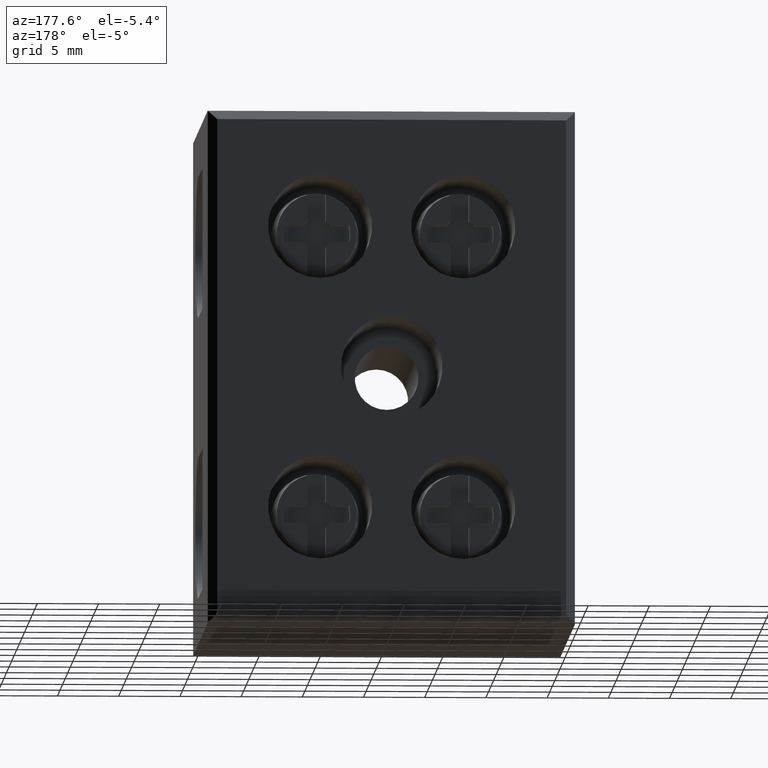
[diagram: clean part render]
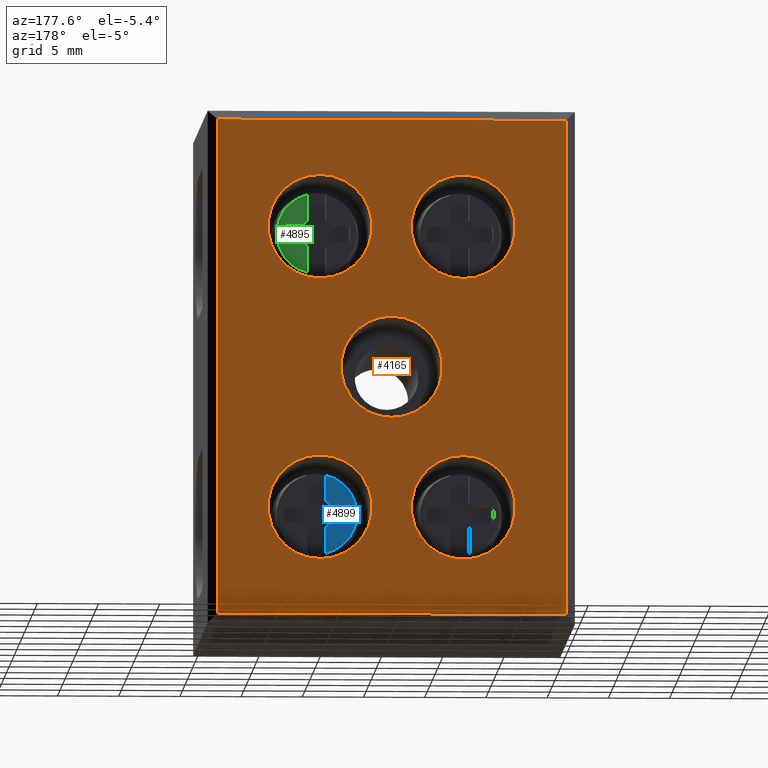
[diagram: same view with three faces highlighted in distinct colors, each labeled with its STEP entity id]
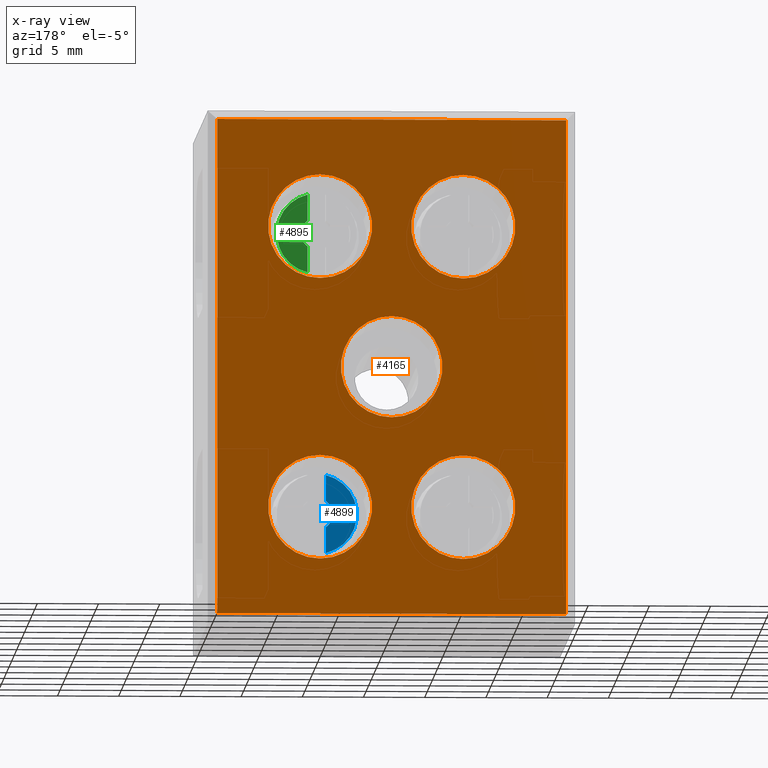
[diagram: x-ray of the same camera — body ghosted, the three highlighted faces saturated]
A machine part, auxiliary view with three faces highlighted in distinct colors.
The next image is the same camera in x-ray (body ghosted, the three faces saturated) — at least one of them is partly hidden behind the body in this view.
Their STEP definitions:

[orange] entity #4165 — the highlighted planar face has unit normal (0, -1, 0).
#145 = EDGE_LOOP ( 'NONE', ( #568, #567 ) ) ;
#162 = EDGE_LOOP ( 'NONE', ( #584, #547 ) ) ;
#168 = EDGE_LOOP ( 'NONE', ( #489, #498 ) ) ;
#196 = EDGE_LOOP ( 'NONE', ( #586, #576 ) ) ;
#237 = EDGE_LOOP ( 'NONE', ( #559, #509, #579, #540 ) ) ;
#241 = EDGE_LOOP ( 'NONE', ( #539, #544 ) ) ;
#489 = ORIENTED_EDGE ( 'NONE', *, *, #4594, .F. ) ;
#498 = ORIENTED_EDGE ( 'NONE', *, *, #4290, .F. ) ;
#509 = ORIENTED_EDGE ( 'NONE', *, *, #4593, .T. ) ;
#539 = ORIENTED_EDGE ( 'NONE', *, *, #4613, .F. ) ;
#540 = ORIENTED_EDGE ( 'NONE', *, *, #4612, .T. ) ;
#544 = ORIENTED_EDGE ( 'NONE', *, *, #4296, .F. ) ;
#547 = ORIENTED_EDGE ( 'NONE', *, *, #4578, .T. ) ;
#559 = ORIENTED_EDGE ( 'NONE', *, *, #4592, .T. ) ;
#567 = ORIENTED_EDGE ( 'NONE', *, *, #4289, .F. ) ;
#568 = ORIENTED_EDGE ( 'NONE', *, *, #4604, .F. ) ;
#576 = ORIENTED_EDGE ( 'NONE', *, *, #4205, .F. ) ;
#579 = ORIENTED_EDGE ( 'NONE', *, *, #4567, .T. ) ;
#584 = ORIENTED_EDGE ( 'NONE', *, *, #4273, .T. ) ;
#586 = ORIENTED_EDGE ( 'NONE', *, *, #4569, .F. ) ;
#1456 = VERTEX_POINT ( 'NONE', #1818 ) ;
#1458 = VERTEX_POINT ( 'NONE', #1870 ) ;
#1460 = VERTEX_POINT ( 'NONE', #1866 ) ;
#1467 = VERTEX_POINT ( 'NONE', #1813 ) ;
#1483 = VERTEX_POINT ( 'NONE', #1852 ) ;
#1499 = VERTEX_POINT ( 'NONE', #1849 ) ;
#1516 = VERTEX_POINT ( 'NONE', #1919 ) ;
#1536 = VERTEX_POINT ( 'NONE', #1909 ) ;
#1542 = VERTEX_POINT ( 'NONE', #1903 ) ;
#1549 = VERTEX_POINT ( 'NONE', #1932 ) ;
#1685 = VERTEX_POINT ( 'NONE', #2005 ) ;
#1705 = VERTEX_POINT ( 'NONE', #2112 ) ;
#1721 = VERTEX_POINT ( 'NONE', #2093 ) ;
#1732 = VERTEX_POINT ( 'NONE', #2089 ) ;
#1813 = CARTESIAN_POINT ( 'NONE',  ( 9.149999999999993200, 30.00000000000000000, -28.24999999999999600 ) ) ;
#1818 = CARTESIAN_POINT ( 'NONE',  ( 15.00000000000000500, 30.00000000000000000, -25.15000000000000200 ) ) ;
#1849 = CARTESIAN_POINT ( 'NONE',  ( 20.84999999999999400, 30.00000000000000000, -36.75000000000000700 ) ) ;
#1852 = CARTESIAN_POINT ( 'NONE',  ( 9.149999999999993200, 30.00000000000000000, -5.249999999999999100 ) ) ;
#1866 = CARTESIAN_POINT ( 'NONE',  ( 20.84999999999999400, 30.00000000000000000, -28.25000000000000000 ) ) ;
#1870 = CARTESIAN_POINT ( 'NONE',  ( 20.85000000000000100, 30.00000000000000000, -5.249999999999997300 ) ) ;
#1903 = CARTESIAN_POINT ( 'NONE',  ( 20.85000000000000100, 30.00000000000000000, -13.75000000000000900 ) ) ;
#1909 = CARTESIAN_POINT ( 'NONE',  ( 9.149999999999993200, 30.00000000000000000, -13.75000000000000400 ) ) ;
#1919 = CARTESIAN_POINT ( 'NONE',  ( 9.149999999999993200, 30.00000000000000000, -36.75000000000000700 ) ) ;
#1932 = CARTESIAN_POINT ( 'NONE',  ( 15.00000000000000500, 30.00000000000000000, -16.85000000000000100 ) ) ;
#2005 = CARTESIAN_POINT ( 'NONE',  ( 29.25000000000000400, 30.00000000000000000, -41.24999999999999300 ) ) ;
#2089 = CARTESIAN_POINT ( 'NONE',  ( 0.7500000000000004400, 30.00000000000000000, -41.25000000000000000 ) ) ;
#2093 = CARTESIAN_POINT ( 'NONE',  ( 0.7500000000000011100, 30.00000000000000000, -0.7500000000000030000 ) ) ;
#2112 = CARTESIAN_POINT ( 'NONE',  ( 29.25000000000000400, 30.00000000000000000, -0.7499999999999967800 ) ) ;
#3083 = CARTESIAN_POINT ( 'NONE',  ( 20.85000000000000100, 30.00000000000000000, -9.500000000000003600 ) ) ;
#3084 = DIRECTION ( 'NONE',  ( 0.0000000000000000000, 1.000000000000000000, 0.0000000000000000000 ) ) ;
#3085 = DIRECTION ( 'NONE',  ( 0.0000000000000000000, 0.0000000000000000000, 1.000000000000000000 ) ) ;
#3102 = DIRECTION ( 'NONE',  ( 1.000000000000000000, 0.0000000000000000000, 0.0000000000000000000 ) ) ;
#3103 = LINE ( 'NONE', #3119, #6251 ) ;
#3119 = CARTESIAN_POINT ( 'NONE',  ( 0.0000000000000000000, 30.00000000000000000, -0.7500000000000006700 ) ) ;
#3423 = FACE_OUTER_BOUND ( 'NONE', #237, .T. ) ;
#3424 = FACE_BOUND ( 'NONE', #145, .T. ) ;
#3425 = PLANE ( 'NONE',  #6668 ) ;
#3428 = DIRECTION ( 'NONE',  ( 0.0000000000000000000, -1.000000000000000000, 0.0000000000000000000 ) ) ;
#3430 = FACE_BOUND ( 'NONE', #168, .T. ) ;
#3433 = FACE_BOUND ( 'NONE', #196, .T. ) ;
#3439 = FACE_BOUND ( 'NONE', #241, .T. ) ;
#3448 = DIRECTION ( 'NONE',  ( 0.0000000000000000000, -0.0000000000000000000, -1.000000000000000000 ) ) ;
#3454 = FACE_BOUND ( 'NONE', #162, .T. ) ;
#3459 = CARTESIAN_POINT ( 'NONE',  ( 0.0000000000000000000, 30.00000000000000000, -42.00000000000000000 ) ) ;
#3653 = CARTESIAN_POINT ( 'NONE',  ( 20.85000000000000100, 30.00000000000000000, -9.500000000000003600 ) ) ;
#3670 = DIRECTION ( 'NONE',  ( 0.0000000000000000000, 1.000000000000000000, 0.0000000000000000000 ) ) ;
#3676 = DIRECTION ( 'NONE',  ( 0.0000000000000000000, 0.0000000000000000000, 1.000000000000000000 ) ) ;
#3909 = DIRECTION ( 'NONE',  ( -0.0000000000000000000, -1.000000000000000000, -0.0000000000000000000 ) ) ;
#3943 = CARTESIAN_POINT ( 'NONE',  ( 15.00000000000000500, 30.00000000000000000, -21.00000000000000000 ) ) ;
#3944 = DIRECTION ( 'NONE',  ( 0.0000000000000000000, 0.0000000000000000000, 1.000000000000000000 ) ) ;
#3981 = CARTESIAN_POINT ( 'NONE',  ( 20.84999999999999400, 30.00000000000000000, -32.50000000000000000 ) ) ;
#3983 = DIRECTION ( 'NONE',  ( 0.0000000000000000000, 0.0000000000000000000, 1.000000000000000000 ) ) ;
#3985 = DIRECTION ( 'NONE',  ( 0.0000000000000000000, 1.000000000000000000, 0.0000000000000000000 ) ) ;
#3986 = DIRECTION ( 'NONE',  ( 0.0000000000000000000, 0.0000000000000000000, 1.000000000000000000 ) ) ;
#3990 = DIRECTION ( 'NONE',  ( 0.0000000000000000000, 1.000000000000000000, 0.0000000000000000000 ) ) ;
#4001 = CARTESIAN_POINT ( 'NONE',  ( 9.149999999999993200, 30.00000000000000000, -9.500000000000001800 ) ) ;
#4005 = CARTESIAN_POINT ( 'NONE',  ( 9.149999999999993200, 30.00000000000000000, -32.50000000000000000 ) ) ;
#4006 = DIRECTION ( 'NONE',  ( 0.0000000000000000000, 1.000000000000000000, 0.0000000000000000000 ) ) ;
#4007 = DIRECTION ( 'NONE',  ( 0.0000000000000000000, 0.0000000000000000000, 1.000000000000000000 ) ) ;
#4165 = ADVANCED_FACE ( 'NONE', ( #3423, #3439, #3430, #3433, #3424, #3454 ), #3425, .F. ) ;
#4205 = EDGE_CURVE ( 'NONE', #1542, #1458, #5761, .T. ) ;
#4273 = EDGE_CURVE ( 'NONE', #1549, #1456, #5842, .T. ) ;
#4289 = EDGE_CURVE ( 'NONE', #1536, #1483, #5867, .T. ) ;
#4290 = EDGE_CURVE ( 'NONE', #1499, #1460, #5881, .T. ) ;
#4296 = EDGE_CURVE ( 'NONE', #1516, #1467, #5897, .T. ) ;
#4567 = EDGE_CURVE ( 'NONE', #1721, #1705, #3103, .T. ) ;
#4569 = EDGE_CURVE ( 'NONE', #1458, #1542, #6236, .T. ) ;
#4578 = EDGE_CURVE ( 'NONE', #1456, #1549, #6211, .T. ) ;
#4592 = EDGE_CURVE ( 'NONE', #1685, #1732, #4913, .T. ) ;
#4593 = EDGE_CURVE ( 'NONE', #1732, #1721, #4912, .T. ) ;
#4594 = EDGE_CURVE ( 'NONE', #1460, #1499, #6222, .T. ) ;
#4604 = EDGE_CURVE ( 'NONE', #1483, #1536, #6286, .T. ) ;
#4612 = EDGE_CURVE ( 'NONE', #1705, #1685, #5036, .T. ) ;
#4613 = EDGE_CURVE ( 'NONE', #1467, #1516, #6283, .T. ) ;
#4912 = LINE ( 'NONE', #4922, #6208 ) ;
#4913 = LINE ( 'NONE', #4914, #6228 ) ;
#4914 = CARTESIAN_POINT ( 'NONE',  ( 0.0000000000000000000, 30.00000000000000000, -41.25000000000000000 ) ) ;
#4915 = DIRECTION ( 'NONE',  ( -1.000000000000000000, -0.0000000000000000000, -0.0000000000000000000 ) ) ;
#4922 = CARTESIAN_POINT ( 'NONE',  ( 0.7500000000000003300, 30.00000000000000000, -42.00000000000000000 ) ) ;
#4925 = DIRECTION ( 'NONE',  ( -0.0000000000000000000, 0.0000000000000000000, 1.000000000000000000 ) ) ;
#4962 = DIRECTION ( 'NONE',  ( 0.0000000000000000000, 0.0000000000000000000, 1.000000000000000000 ) ) ;
#4970 = DIRECTION ( 'NONE',  ( 0.0000000000000000000, 0.0000000000000000000, 1.000000000000000000 ) ) ;
#4983 = CARTESIAN_POINT ( 'NONE',  ( 9.149999999999993200, 30.00000000000000000, -9.500000000000001800 ) ) ;
#4985 = DIRECTION ( 'NONE',  ( 0.0000000000000000000, 1.000000000000000000, 0.0000000000000000000 ) ) ;
#4986 = CARTESIAN_POINT ( 'NONE',  ( 20.84999999999999400, 30.00000000000000000, -32.50000000000000000 ) ) ;
#4988 = DIRECTION ( 'NONE',  ( 0.0000000000000000000, 1.000000000000000000, 0.0000000000000000000 ) ) ;
#5008 = DIRECTION ( 'NONE',  ( 0.0000000000000000000, 1.000000000000000000, 0.0000000000000000000 ) ) ;
#5015 = CARTESIAN_POINT ( 'NONE',  ( 9.149999999999993200, 30.00000000000000000, -32.50000000000000000 ) ) ;
#5019 = CARTESIAN_POINT ( 'NONE',  ( 29.25000000000000000, 30.00000000000000000, -42.00000000000000000 ) ) ;
#5031 = DIRECTION ( 'NONE',  ( 0.0000000000000000000, 0.0000000000000000000, 1.000000000000000000 ) ) ;
#5033 = DIRECTION ( 'NONE',  ( -0.0000000000000000000, -0.0000000000000000000, -1.000000000000000000 ) ) ;
#5036 = LINE ( 'NONE', #5019, #6306 ) ;
#5717 = CARTESIAN_POINT ( 'NONE',  ( 15.00000000000000500, 30.00000000000000000, -21.00000000000000000 ) ) ;
#5718 = DIRECTION ( 'NONE',  ( -0.0000000000000000000, -1.000000000000000000, -0.0000000000000000000 ) ) ;
#5720 = DIRECTION ( 'NONE',  ( 0.0000000000000000000, 0.0000000000000000000, 1.000000000000000000 ) ) ;
#5761 = CIRCLE ( 'NONE', #5782, 4.250000000000005300 ) ;
#5782 = AXIS2_PLACEMENT_3D ( 'NONE', #3653, #3670, #3676 ) ;
#5832 = AXIS2_PLACEMENT_3D ( 'NONE', #3943, #3909, #3944 ) ;
#5842 = CIRCLE ( 'NONE', #5832, 4.150000000000001200 ) ;
#5859 = AXIS2_PLACEMENT_3D ( 'NONE', #3981, #3985, #3983 ) ;
#5867 = CIRCLE ( 'NONE', #5872, 4.250000000000001800 ) ;
#5872 = AXIS2_PLACEMENT_3D ( 'NONE', #4001, #3990, #3986 ) ;
#5881 = CIRCLE ( 'NONE', #5859, 4.250000000000000000 ) ;
#5897 = CIRCLE ( 'NONE', #5905, 4.250000000000003600 ) ;
#5905 = AXIS2_PLACEMENT_3D ( 'NONE', #4005, #4006, #4007 ) ;
#6208 = VECTOR ( 'NONE', #4925, 1000.000000000000000 ) ;
#6211 = CIRCLE ( 'NONE', #6229, 4.150000000000001200 ) ;
#6222 = CIRCLE ( 'NONE', #6223, 4.250000000000000000 ) ;
#6223 = AXIS2_PLACEMENT_3D ( 'NONE', #4986, #4988, #4970 ) ;
#6228 = VECTOR ( 'NONE', #4915, 1000.000000000000000 ) ;
#6229 = AXIS2_PLACEMENT_3D ( 'NONE', #5717, #5718, #5720 ) ;
#6236 = CIRCLE ( 'NONE', #6266, 4.250000000000005300 ) ;
#6251 = VECTOR ( 'NONE', #3102, 1000.000000000000000 ) ;
#6266 = AXIS2_PLACEMENT_3D ( 'NONE', #3083, #3084, #3085 ) ;
#6283 = CIRCLE ( 'NONE', #6302, 4.250000000000003600 ) ;
#6286 = CIRCLE ( 'NONE', #6294, 4.250000000000001800 ) ;
#6294 = AXIS2_PLACEMENT_3D ( 'NONE', #4983, #4985, #4962 ) ;
#6302 = AXIS2_PLACEMENT_3D ( 'NONE', #5015, #5008, #5031 ) ;
#6306 = VECTOR ( 'NONE', #5033, 1000.000000000000000 ) ;
#6668 = AXIS2_PLACEMENT_3D ( 'NONE', #3459, #3428, #3448 ) ;

[blue] entity #4899 — the highlighted planar face has unit normal (0, 1, 0).
#71 = EDGE_LOOP ( 'NONE', ( #336, #246, #356, #333, #312, #275, #322, #299 ) ) ;
#246 = ORIENTED_EDGE ( 'NONE', *, *, #4541, .F. ) ;
#275 = ORIENTED_EDGE ( 'NONE', *, *, #4441, .T. ) ;
#299 = ORIENTED_EDGE ( 'NONE', *, *, #4404, .T. ) ;
#312 = ORIENTED_EDGE ( 'NONE', *, *, #4452, .T. ) ;
#322 = ORIENTED_EDGE ( 'NONE', *, *, #4430, .T. ) ;
#333 = ORIENTED_EDGE ( 'NONE', *, *, #4407, .T. ) ;
#336 = ORIENTED_EDGE ( 'NONE', *, *, #4470, .T. ) ;
#356 = ORIENTED_EDGE ( 'NONE', *, *, #4461, .T. ) ;
#1031 = DIRECTION ( 'NONE',  ( 0.0000000000000000000, -0.0000000000000000000, 1.000000000000000000 ) ) ;
#1035 = FACE_OUTER_BOUND ( 'NONE', #71, .T. ) ;
#1056 = PLANE ( 'NONE',  #6575 ) ;
#1059 = CARTESIAN_POINT ( 'NONE',  ( 20.85000000000000500, 23.59350766278916100, -32.50000000000000000 ) ) ;
#1063 = DIRECTION ( 'NONE',  ( 0.0000000000000000000, 1.000000000000000000, 0.0000000000000000000 ) ) ;
#1585 = VERTEX_POINT ( 'NONE', #1958 ) ;
#1613 = VERTEX_POINT ( 'NONE', #1991 ) ;
#1624 = VERTEX_POINT ( 'NONE', #1946 ) ;
#1648 = VERTEX_POINT ( 'NONE', #2026 ) ;
#1649 = VERTEX_POINT ( 'NONE', #2012 ) ;
#1656 = VERTEX_POINT ( 'NONE', #2020 ) ;
#1671 = VERTEX_POINT ( 'NONE', #2052 ) ;
#1682 = VERTEX_POINT ( 'NONE', #2002 ) ;
#1946 = CARTESIAN_POINT ( 'NONE',  ( 18.19983519314440600, 23.59350766278916100, -31.79296972710253400 ) ) ;
#1958 = CARTESIAN_POINT ( 'NONE',  ( 19.75917633633056200, 23.59350766278916100, -31.79296972710231400 ) ) ;
#1991 = CARTESIAN_POINT ( 'NONE',  ( 20.09943707760034900, 23.59350766278916100, -31.43865963445544100 ) ) ;
#2002 = CARTESIAN_POINT ( 'NONE',  ( 20.09943707760064100, 23.59350766278916100, -33.56134036554459500 ) ) ;
#2012 = CARTESIAN_POINT ( 'NONE',  ( 18.19983519314476800, 23.59350766278916100, -33.20703027289884100 ) ) ;
#2020 = CARTESIAN_POINT ( 'NONE',  ( 19.75917633633130800, 23.59350766278916100, -33.20703027289884100 ) ) ;
#2026 = CARTESIAN_POINT ( 'NONE',  ( 20.09943707760038100, 23.59350766278445700, -29.30984186875197400 ) ) ;
#2052 = CARTESIAN_POINT ( 'NONE',  ( 20.09943707760053400, 23.59350766278445700, -35.69015813124806900 ) ) ;
#2600 = DIRECTION ( 'NONE',  ( -0.0000000000000000000, -1.000000000000000000, -0.0000000000000000000 ) ) ;
#2603 = DIRECTION ( 'NONE',  ( 2.668972699058960700E-015, 0.0000000000000000000, 1.000000000000000000 ) ) ;
#2606 = CARTESIAN_POINT ( 'NONE',  ( 20.85000000000000500, 23.59350766278916100, -32.50000000000000000 ) ) ;
#2612 = DIRECTION ( 'NONE',  ( 5.337945398117921400E-015, 0.0000000000000000000, 1.000000000000000000 ) ) ;
#2622 = DIRECTION ( 'NONE',  ( -0.0000000000000000000, -1.000000000000000000, -0.0000000000000000000 ) ) ;
#2625 = CARTESIAN_POINT ( 'NONE',  ( 20.85000000000000500, 23.59350766278916100, -32.50000000000000000 ) ) ;
#2678 = CARTESIAN_POINT ( 'NONE',  ( 20.85000000000000500, 23.59350766278916100, -33.20703027289884100 ) ) ;
#2680 = DIRECTION ( 'NONE',  ( 1.000000000000000000, 0.0000000000000000000, -0.0000000000000000000 ) ) ;
#2688 = LINE ( 'NONE', #2678, #6065 ) ;
#2703 = DIRECTION ( 'NONE',  ( -1.264902534216118800E-015, 0.0000000000000000000, 1.000000000000000000 ) ) ;
#2722 = CARTESIAN_POINT ( 'NONE',  ( 20.85000000000000500, 23.59350766278916100, -32.50000000000000000 ) ) ;
#2732 = DIRECTION ( 'NONE',  ( -0.0000000000000000000, -1.000000000000000000, -0.0000000000000000000 ) ) ;
#2739 = CARTESIAN_POINT ( 'NONE',  ( 20.85000000000000500, 23.59350766278916100, -31.79296972710231400 ) ) ;
#2743 = LINE ( 'NONE', #2739, #6037 ) ;
#2753 = DIRECTION ( 'NONE',  ( -1.000000000000000000, -0.0000000000000000000, 0.0000000000000000000 ) ) ;
#2769 = DIRECTION ( 'NONE',  ( -0.0000000000000000000, 0.0000000000000000000, -1.000000000000000000 ) ) ;
#2777 = LINE ( 'NONE', #2778, #6113 ) ;
#2778 = CARTESIAN_POINT ( 'NONE',  ( 20.09943707760038100, 23.59350766278916100, -32.50000000000000000 ) ) ;
#2812 = LINE ( 'NONE', #2818, #6103 ) ;
#2814 = DIRECTION ( 'NONE',  ( -0.0000000000000000000, 0.0000000000000000000, -1.000000000000000000 ) ) ;
#2818 = CARTESIAN_POINT ( 'NONE',  ( 20.09943707760064100, 23.59350766278916100, -32.50000000000000000 ) ) ;
#2995 = DIRECTION ( 'NONE',  ( 0.0000000000000000000, -1.000000000000000000, 0.0000000000000000000 ) ) ;
#3008 = DIRECTION ( 'NONE',  ( 0.0000000000000000000, 0.0000000000000000000, -1.000000000000000000 ) ) ;
#3026 = CARTESIAN_POINT ( 'NONE',  ( 20.85000000000000500, 23.59350766278112100, -32.50000000000000000 ) ) ;
#4404 = EDGE_CURVE ( 'NONE', #1656, #1682, #6002, .T. ) ;
#4407 = EDGE_CURVE ( 'NONE', #1613, #1585, #6007, .T. ) ;
#4430 = EDGE_CURVE ( 'NONE', #1649, #1656, #2688, .T. ) ;
#4441 = EDGE_CURVE ( 'NONE', #1624, #1649, #6064, .T. ) ;
#4452 = EDGE_CURVE ( 'NONE', #1585, #1624, #2743, .T. ) ;
#4461 = EDGE_CURVE ( 'NONE', #1648, #1613, #2777, .T. ) ;
#4470 = EDGE_CURVE ( 'NONE', #1682, #1671, #2812, .T. ) ;
#4541 = EDGE_CURVE ( 'NONE', #1648, #1671, #6176, .T. ) ;
#4899 = ADVANCED_FACE ( 'NONE', ( #1035 ), #1056, .T. ) ;
#6002 = CIRCLE ( 'NONE', #6023, 1.299918486680994700 ) ;
#6007 = CIRCLE ( 'NONE', #6053, 1.299918486680994700 ) ;
#6023 = AXIS2_PLACEMENT_3D ( 'NONE', #2606, #2600, #2603 ) ;
#6031 = AXIS2_PLACEMENT_3D ( 'NONE', #2722, #2732, #2703 ) ;
#6037 = VECTOR ( 'NONE', #2753, 1000.000000000000000 ) ;
#6053 = AXIS2_PLACEMENT_3D ( 'NONE', #2625, #2622, #2612 ) ;
#6064 = CIRCLE ( 'NONE', #6031, 2.742857143616751700 ) ;
#6065 = VECTOR ( 'NONE', #2680, 1000.000000000000000 ) ;
#6103 = VECTOR ( 'NONE', #2814, 1000.000000000000000 ) ;
#6113 = VECTOR ( 'NONE', #2769, 1000.000000000000000 ) ;
#6170 = AXIS2_PLACEMENT_3D ( 'NONE', #3026, #2995, #3008 ) ;
#6176 = CIRCLE ( 'NONE', #6170, 3.277263126886663400 ) ;
#6575 = AXIS2_PLACEMENT_3D ( 'NONE', #1059, #1063, #1031 ) ;

[green] entity #4895 — the highlighted planar face has unit normal (0, 1, 0).
#92 = EDGE_LOOP ( 'NONE', ( #363, #313, #329, #311, #347, #320, #314, #354 ) ) ;
#311 = ORIENTED_EDGE ( 'NONE', *, *, #4269, .T. ) ;
#313 = ORIENTED_EDGE ( 'NONE', *, *, #4255, .F. ) ;
#314 = ORIENTED_EDGE ( 'NONE', *, *, #4408, .T. ) ;
#320 = ORIENTED_EDGE ( 'NONE', *, *, #4492, .T. ) ;
#329 = ORIENTED_EDGE ( 'NONE', *, *, #4490, .T. ) ;
#347 = ORIENTED_EDGE ( 'NONE', *, *, #4486, .T. ) ;
#354 = ORIENTED_EDGE ( 'NONE', *, *, #4345, .T. ) ;
#363 = ORIENTED_EDGE ( 'NONE', *, *, #4456, .T. ) ;
#1034 = DIRECTION ( 'NONE',  ( 0.0000000000000000000, -0.0000000000000000000, 1.000000000000000000 ) ) ;
#1043 = DIRECTION ( 'NONE',  ( 0.0000000000000000000, 1.000000000000000000, 0.0000000000000000000 ) ) ;
#1050 = PLANE ( 'NONE',  #6565 ) ;
#1052 = FACE_OUTER_BOUND ( 'NONE', #92, .T. ) ;
#1054 = CARTESIAN_POINT ( 'NONE',  ( 20.85000000000000500, 23.59350766278916100, -9.500000000000003600 ) ) ;
#1513 = VERTEX_POINT ( 'NONE', #1902 ) ;
#1546 = VERTEX_POINT ( 'NONE', #1931 ) ;
#1567 = VERTEX_POINT ( 'NONE', #1961 ) ;
#1577 = VERTEX_POINT ( 'NONE', #1948 ) ;
#1583 = VERTEX_POINT ( 'NONE', #1974 ) ;
#1604 = VERTEX_POINT ( 'NONE', #1986 ) ;
#1605 = VERTEX_POINT ( 'NONE', #1981 ) ;
#1618 = VERTEX_POINT ( 'NONE', #1955 ) ;
#1902 = CARTESIAN_POINT ( 'NONE',  ( 21.60056292240041000, 23.59350766278433300, -12.69015813124452800 ) ) ;
#1931 = CARTESIAN_POINT ( 'NONE',  ( 21.60056292239963200, 23.59350766278433300, -6.309841868755294800 ) ) ;
#1948 = CARTESIAN_POINT ( 'NONE',  ( 21.60056292240010500, 23.59350766278916100, -10.56134036554407600 ) ) ;
#1955 = CARTESIAN_POINT ( 'NONE',  ( 21.60056292239896800, 23.59350766278916100, -8.438659634455124300 ) ) ;
#1961 = CARTESIAN_POINT ( 'NONE',  ( 23.50016480685545900, 23.59350766278916100, -8.792969727102052600 ) ) ;
#1974 = CARTESIAN_POINT ( 'NONE',  ( 21.94082366366927800, 23.59350766278916100, -8.792969727102052600 ) ) ;
#1981 = CARTESIAN_POINT ( 'NONE',  ( 23.50016480685515700, 23.59350766278916100, -10.20703027289909100 ) ) ;
#1986 = CARTESIAN_POINT ( 'NONE',  ( 21.94082366366870200, 23.59350766278916100, -10.20703027289884300 ) ) ;
#2422 = CARTESIAN_POINT ( 'NONE',  ( 20.85000000000000500, 23.59350766278916100, -9.500000000000003600 ) ) ;
#2433 = DIRECTION ( 'NONE',  ( -0.0000000000000000000, -1.000000000000000000, -0.0000000000000000000 ) ) ;
#2444 = DIRECTION ( 'NONE',  ( -2.668972699058960700E-015, 0.0000000000000000000, 1.000000000000000000 ) ) ;
#2602 = LINE ( 'NONE', #2605, #6024 ) ;
#2605 = CARTESIAN_POINT ( 'NONE',  ( 20.85000000000000500, 23.59350766278916100, -8.792969727102052600 ) ) ;
#2614 = DIRECTION ( 'NONE',  ( -1.000000000000000000, -0.0000000000000000000, 0.0000000000000000000 ) ) ;
#2751 = DIRECTION ( 'NONE',  ( 0.0000000000000000000, -0.0000000000000000000, 1.000000000000000000 ) ) ;
#2760 = CARTESIAN_POINT ( 'NONE',  ( 21.60056292239896800, 23.59350766278916100, -9.500000000000003600 ) ) ;
#2765 = LINE ( 'NONE', #2760, #6087 ) ;
#2833 = CARTESIAN_POINT ( 'NONE',  ( 21.60056292240041000, 23.59350766278916100, -9.500000000000003600 ) ) ;
#2848 = DIRECTION ( 'NONE',  ( 1.000000000000000000, 0.0000000000000000000, -0.0000000000000000000 ) ) ;
#2861 = LINE ( 'NONE', #2869, #6123 ) ;
#2862 = DIRECTION ( 'NONE',  ( 0.0000000000000000000, -0.0000000000000000000, 1.000000000000000000 ) ) ;
#2868 = LINE ( 'NONE', #2833, #6100 ) ;
#2869 = CARTESIAN_POINT ( 'NONE',  ( 20.85000000000000500, 23.59350766278916100, -10.20703027289884300 ) ) ;
#2895 = CARTESIAN_POINT ( 'NONE',  ( 20.85000000000000500, 23.59350766278916100, -9.500000000000003600 ) ) ;
#2905 = DIRECTION ( 'NONE',  ( -0.0000000000000000000, -1.000000000000000000, -0.0000000000000000000 ) ) ;
#2907 = DIRECTION ( 'NONE',  ( 1.264902534216126300E-015, 0.0000000000000000000, 1.000000000000000000 ) ) ;
#3895 = DIRECTION ( 'NONE',  ( 0.0000000000000000000, 0.0000000000000000000, -1.000000000000000000 ) ) ;
#3896 = CARTESIAN_POINT ( 'NONE',  ( 20.85000000000000500, 23.59350766278112100, -9.500000000000003600 ) ) ;
#3897 = DIRECTION ( 'NONE',  ( 0.0000000000000000000, -1.000000000000000000, 0.0000000000000000000 ) ) ;
#3910 = DIRECTION ( 'NONE',  ( -0.0000000000000000000, -1.000000000000000000, -0.0000000000000000000 ) ) ;
#3912 = CARTESIAN_POINT ( 'NONE',  ( 20.85000000000000500, 23.59350766278916100, -9.500000000000003600 ) ) ;
#3919 = DIRECTION ( 'NONE',  ( -2.668972699058960700E-015, 0.0000000000000000000, 1.000000000000000000 ) ) ;
#4255 = EDGE_CURVE ( 'NONE', #1513, #1546, #5829, .T. ) ;
#4269 = EDGE_CURVE ( 'NONE', #1577, #1604, #5805, .T. ) ;
#4345 = EDGE_CURVE ( 'NONE', #1583, #1618, #5935, .T. ) ;
#4408 = EDGE_CURVE ( 'NONE', #1567, #1583, #2602, .T. ) ;
#4456 = EDGE_CURVE ( 'NONE', #1618, #1546, #2765, .T. ) ;
#4486 = EDGE_CURVE ( 'NONE', #1604, #1605, #2861, .T. ) ;
#4490 = EDGE_CURVE ( 'NONE', #1513, #1577, #2868, .T. ) ;
#4492 = EDGE_CURVE ( 'NONE', #1605, #1567, #6126, .T. ) ;
#4895 = ADVANCED_FACE ( 'NONE', ( #1052 ), #1050, .T. ) ;
#5800 = AXIS2_PLACEMENT_3D ( 'NONE', #3912, #3910, #3919 ) ;
#5805 = CIRCLE ( 'NONE', #5800, 1.299918486680994700 ) ;
#5814 = AXIS2_PLACEMENT_3D ( 'NONE', #3896, #3897, #3895 ) ;
#5829 = CIRCLE ( 'NONE', #5814, 3.277263126883419400 ) ;
#5915 = AXIS2_PLACEMENT_3D ( 'NONE', #2422, #2433, #2444 ) ;
#5935 = CIRCLE ( 'NONE', #5915, 1.299918486680994700 ) ;
#6024 = VECTOR ( 'NONE', #2614, 1000.000000000000000 ) ;
#6087 = VECTOR ( 'NONE', #2751, 1000.000000000000000 ) ;
#6100 = VECTOR ( 'NONE', #2862, 1000.000000000000000 ) ;
#6123 = VECTOR ( 'NONE', #2848, 1000.000000000000000 ) ;
#6126 = CIRCLE ( 'NONE', #6127, 2.742857143616735300 ) ;
#6127 = AXIS2_PLACEMENT_3D ( 'NONE', #2895, #2905, #2907 ) ;
#6565 = AXIS2_PLACEMENT_3D ( 'NONE', #1054, #1043, #1034 ) ;